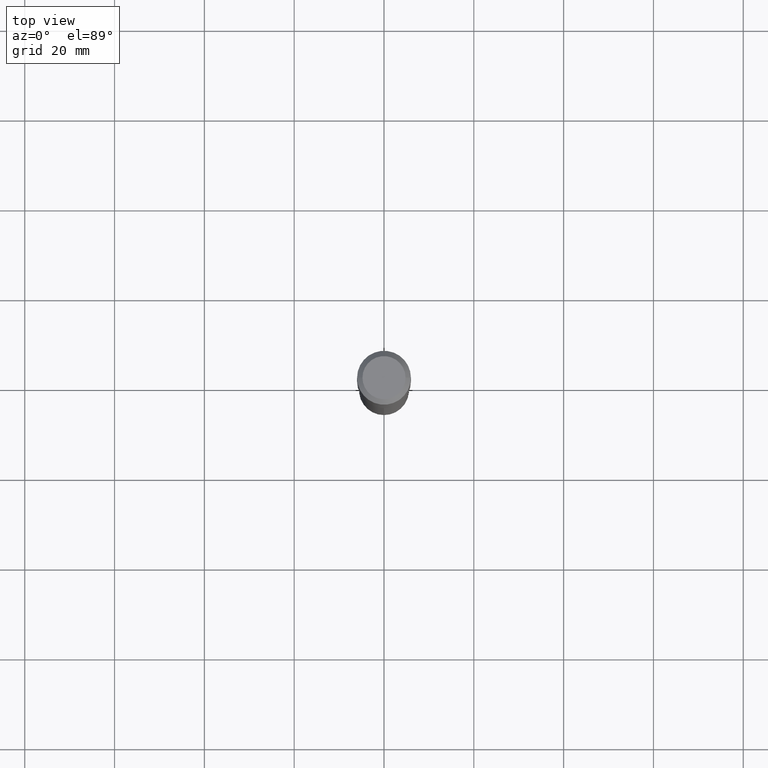
[diagram: clean part render]
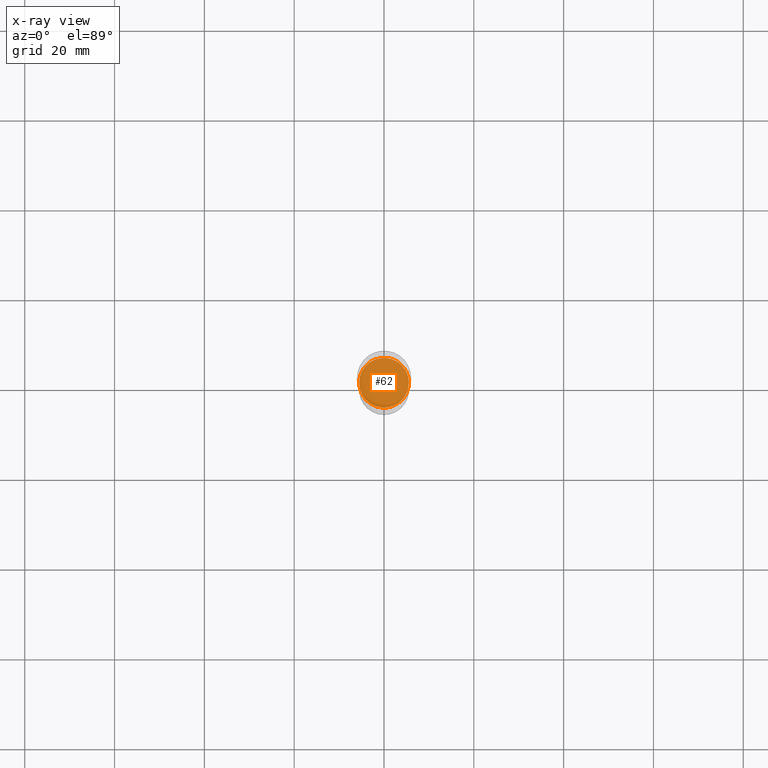
[diagram: x-ray — body ghosted, one internal face saturated and labeled with its STEP entity id]
A machine part, top view, then the same camera in x-ray: the body is ghosted and one INTERNAL B-rep face — a face not visible from any outside direction — is saturated and labeled: STEP entity #62.
In plain terms, the highlighted planar face has unit normal (-0, 0, 1).
Its self-contained STEP definition (entity closure, byte-faithful):
#21 = DIRECTION ( 'NONE',  ( 1.000000000000000000, -6.982962677686270655E-15, 0.000000000000000000 ) ) ;
#26 = ORIENTED_EDGE ( 'NONE', *, *, #133, .F. ) ;
#62 = ADVANCED_FACE ( 'NONE', ( #196 ), #461, .F. ) ;
#64 = CARTESIAN_POINT ( 'NONE',  ( 0.2179999999999999993, -1.059455097458564211E-14, -2.598400000000001597 ) ) ;
#65 = DIRECTION ( 'NONE',  ( -2.445468806185136597E-29, 3.491481338843145583E-15, 1.000000000000000000 ) ) ;
#93 = DIRECTION ( 'NONE',  ( -2.438088387897960049E-29, 3.491481338843145188E-15, 1.000000000000000000 ) ) ;
#97 = CARTESIAN_POINT ( 'NONE',  ( 6.354306145991461998E-29, -9.072265110850035778E-15, -2.598400000000001597 ) ) ;
#111 = EDGE_LOOP ( 'NONE', ( #269, #26 ) ) ;
#133 = EDGE_CURVE ( 'NONE', #162, #150, #176, .T. ) ;
#150 = VERTEX_POINT ( 'NONE', #64 ) ;
#162 = VERTEX_POINT ( 'NONE', #334 ) ;
#163 = AXIS2_PLACEMENT_3D ( 'NONE', #407, #65, #466 ) ;
#176 = CIRCLE ( 'NONE', #266, 0.2179999999999999993 ) ;
#196 = FACE_OUTER_BOUND ( 'NONE', #111, .T. ) ;
#250 = AXIS2_PLACEMENT_3D ( 'NONE', #347, #93, #435 ) ;
#266 = AXIS2_PLACEMENT_3D ( 'NONE', #97, #332, #21 ) ;
#269 = ORIENTED_EDGE ( 'NONE', *, *, #346, .F. ) ;
#332 = DIRECTION ( 'NONE',  ( -2.445468806185136597E-29, 3.491481338843145583E-15, 1.000000000000000000 ) ) ;
#334 = CARTESIAN_POINT ( 'NONE',  ( -0.2179999999999999993, -7.520632719718905584E-15, -2.598400000000001597 ) ) ;
#346 = EDGE_CURVE ( 'NONE', #150, #162, #379, .T. ) ;
#347 = CARTESIAN_POINT ( 'NONE',  ( 1.806774175153688123E-29, -1.558458972253556178E-14, -2.598400000000001597 ) ) ;
#379 = CIRCLE ( 'NONE', #163, 0.2179999999999999993 ) ;
#407 = CARTESIAN_POINT ( 'NONE',  ( 6.354306145991461998E-29, -9.072265110850035778E-15, -2.598400000000001597 ) ) ;
#435 = DIRECTION ( 'NONE',  ( 1.000000000000000000, -6.982962677686265922E-15, 4.876176775795935793E-29 ) ) ;
#461 = PLANE ( 'NONE',  #250 ) ;
#466 = DIRECTION ( 'NONE',  ( 1.000000000000000000, -6.982962677686270655E-15, 0.000000000000000000 ) ) ;